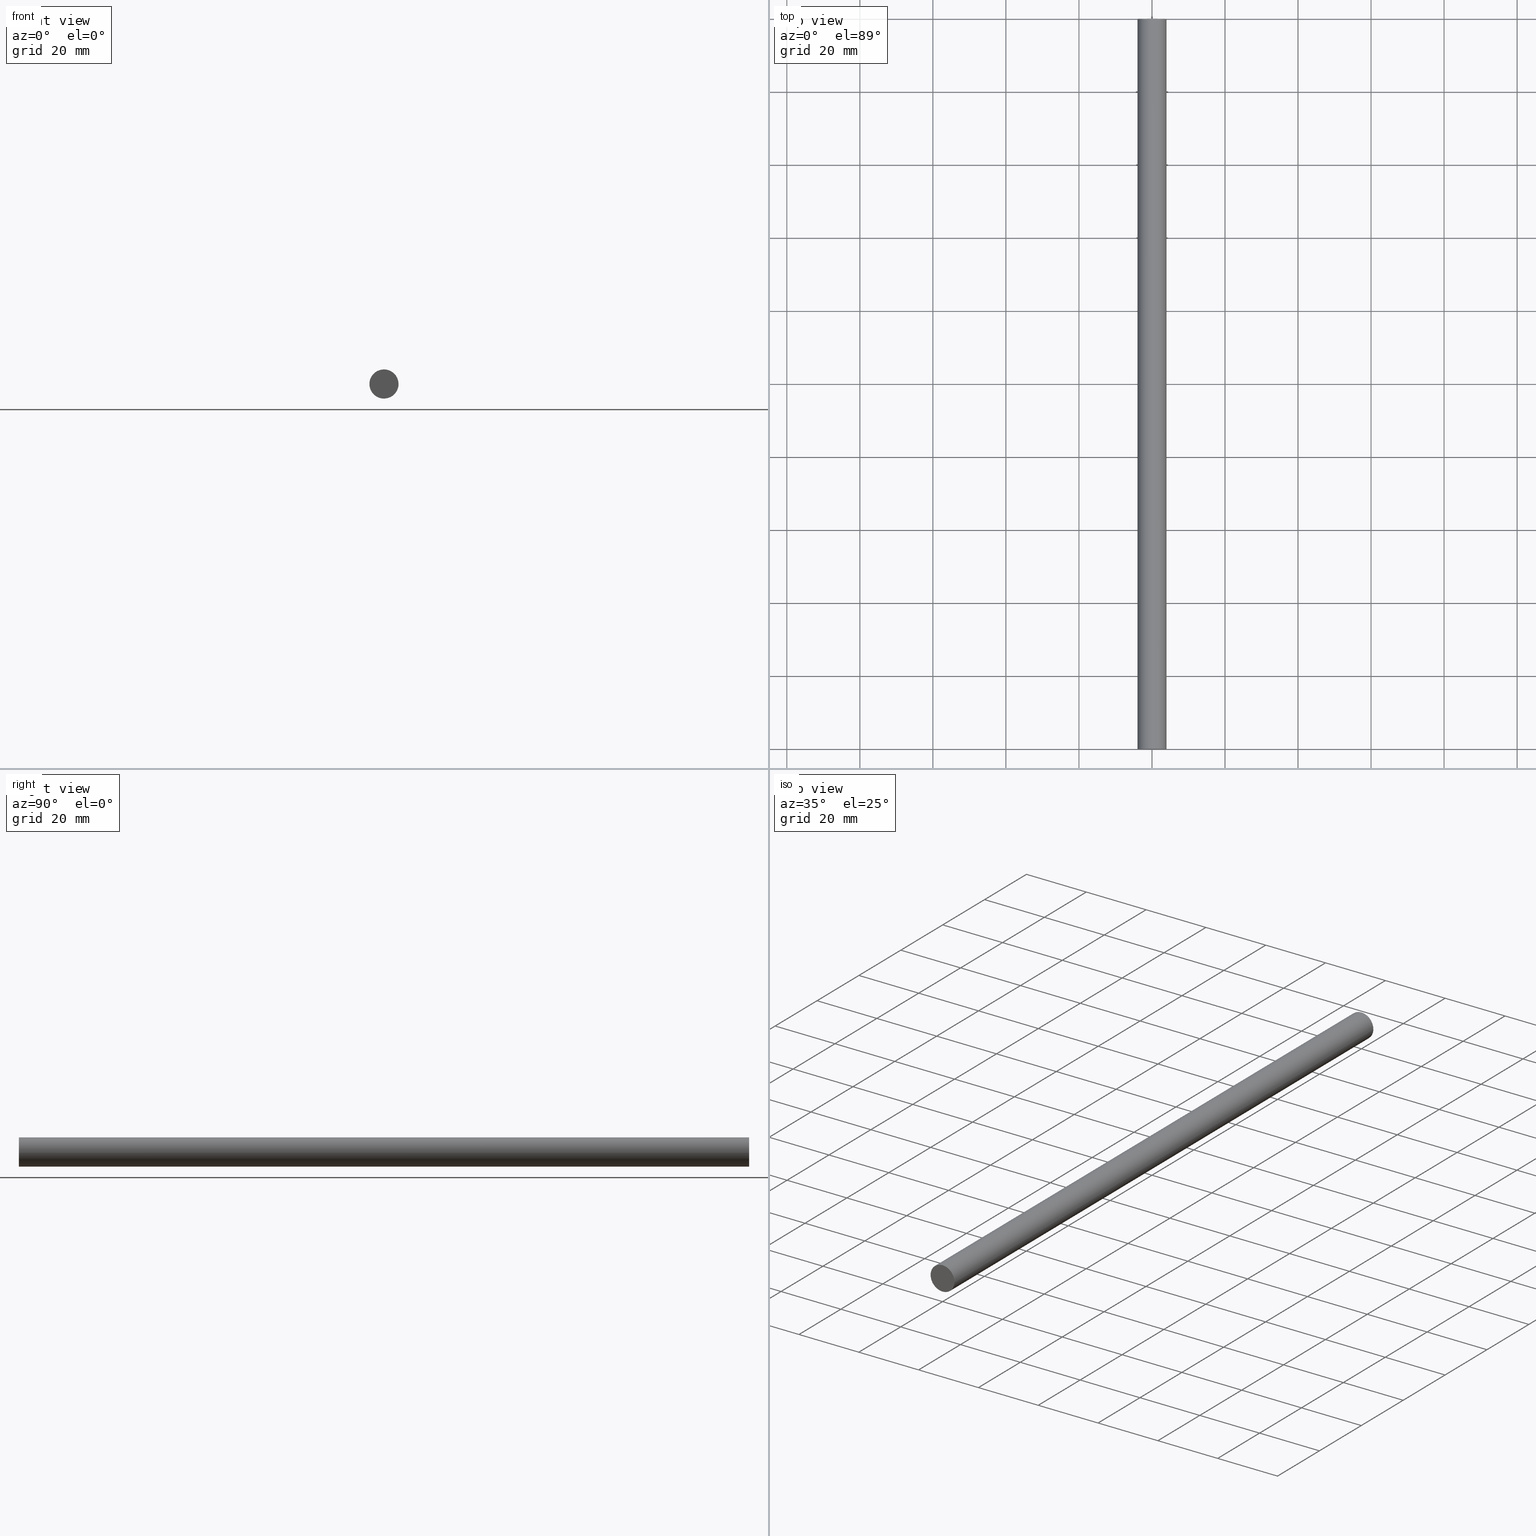
[diagram: canonical four-view strip — front | top / right | iso, engineering-drawing reading convention]
A machine part, canonical four-view strip (front | top / right | iso — engineering-drawing reading convention). The complete STEP part file that produces these views, byte-faithful:
ISO-10303-21;
HEADER;
/****************************************************************
 * Generated by software with PDE/Lib inside                    *
 * PDElib Version 4.4.1-0003, patched  Thursday August 19 11:58 *
 * International Technegroup Inc. (www.iti-oh.com)              *
 ****************************************************************/
FILE_DESCRIPTION((''),'2;1');
FILE_NAME('','2005-12-15T10:01:07',(''),(''),'','CADfix','');
FILE_SCHEMA(('AUTOMOTIVE_DESIGN'));
ENDSEC;
DATA;
#5=APPLICATION_CONTEXT('automotive design');
#6=APPLICATION_PROTOCOL_DEFINITION('Draft International Standard','automotive_design',1998,#5);
#7=PRODUCT_CONTEXT('None',#5,'mechanical');
#8=PRODUCT('rubber foam','','None',(#7));
#9=PRODUCT_RELATED_PRODUCT_CATEGORY('part','description',(#8));
#10=PRODUCT_DEFINITION_FORMATION('None','None',#8);
#11=PRODUCT_DEFINITION_CONTEXT('part definition',#5,'design');
#12=PRODUCT_DEFINITION('None','None',#10,#11);
#18=(NAMED_UNIT(*)PLANE_ANGLE_UNIT()SI_UNIT($,.RADIAN.));
#19=DIMENSIONAL_EXPONENTS(0.0,0.0,0.0,0.0,0.0,0.0,0.0);
#20=PLANE_ANGLE_MEASURE_WITH_UNIT(PLANE_ANGLE_MEASURE(0.017453292500000),#18);
#24=(CONVERSION_BASED_UNIT('DEGREE',#20)NAMED_UNIT(#19)PLANE_ANGLE_UNIT());
#28=(NAMED_UNIT(*)SI_UNIT($,.STERADIAN.)SOLID_ANGLE_UNIT());
#32=(LENGTH_UNIT()NAMED_UNIT(*)SI_UNIT(.MILLI.,.METRE.));
#34=UNCERTAINTY_MEASURE_WITH_UNIT(LENGTH_MEASURE(0.001000000000000),#32,'DISTANCE_ACCURACY_VALUE','');
#36=(GEOMETRIC_REPRESENTATION_CONTEXT(3)GLOBAL_UNCERTAINTY_ASSIGNED_CONTEXT((#34))GLOBAL_UNIT_ASSIGNED_CONTEXT((#24,#28,#32))REPRESENTATION_CONTEXT('None','None'));
#37=AXIS2_PLACEMENT_3D('',#38,#39,#40);
#38=CARTESIAN_POINT('',(0.0,0.0,0.0));
#39=DIRECTION('',(0.0,0.0,1.0));
#40=DIRECTION('',(1.0,0.0,0.0));
#41=ADVANCED_BREP_SHAPE_REPRESENTATION('',(#37,#255),#36);
#42=PRODUCT_DEFINITION_SHAPE('','',#12);
#43=SHAPE_DEFINITION_REPRESENTATION(#42,#41);
#44=CARTESIAN_POINT('',(-3.972038105454666,205.000000000000030,0.472136938627034));
#45=CARTESIAN_POINT('',(-3.985550461794422,205.0,0.358458914551911));
#46=CARTESIAN_POINT('',(-3.992539193687467,205.0,0.244194158139428));
#47=CARTESIAN_POINT('',(-4.236733351826894,205.000000000000090,-3.748345035548039));
#48=CARTESIAN_POINT('',(-0.244194158139428,205.0,-3.992539193687467));
#49=CARTESIAN_POINT('',(3.748345035548039,205.000000000000090,-4.236733351826894));
#50=CARTESIAN_POINT('',(3.992539193687467,205.0,-0.244194158139428));
#51=CARTESIAN_POINT('',(-3.972038105454666,-5.125000000000001,0.472136938627034));
#52=CARTESIAN_POINT('',(-3.985550461794422,-5.125000000000000,0.358458914551911));
#53=CARTESIAN_POINT('',(-3.992539193687467,-5.125000000000000,0.244194158139428));
#54=CARTESIAN_POINT('',(-4.236733351826894,-5.125000000000001,-3.748345035548039));
#55=CARTESIAN_POINT('',(-0.244194158139428,-5.125000000000000,-3.992539193687467));
#56=CARTESIAN_POINT('',(3.748345035548039,-5.125000000000001,-4.236733351826894));
#57=CARTESIAN_POINT('',(3.992539193687467,-5.125000000000000,-0.244194158139428));
#65=(BOUNDED_SURFACE()B_SPLINE_SURFACE(2,1,((#44,#51),(#45,#52),(#46,#53),(#47,#54),(#48,#55),(#49,#56),(#50,#57)),.UNSPECIFIED.,.F.,.F.,.U.)B_SPLINE_SURFACE_WITH_KNOTS((3,2,2,3),(2,2),(0.0,0.265096679918781,6.892513677888299,13.519930675857820),(0.0,210.125000000000110),.UNSPECIFIED.)GEOMETRIC_REPRESENTATION_ITEM()RATIONAL_B_SPLINE_SURFACE(((0.977505800795127,0.977505800795127),(0.988284271247462,0.988284271247462),(1.0,1.0),(0.707106781186548,0.707106781186548),(1.0,1.0),(0.707106781186548,0.707106781186548),(1.0,1.0)))REPRESENTATION_ITEM('')SURFACE());
#66=CARTESIAN_POINT('',(-3.972038105347375,-9.086170E-015,0.472136939529659));
#67=VERTEX_POINT('',#66);
#68=CARTESIAN_POINT('',(0.0,0.0,-4.0));
#69=VERTEX_POINT('',#68);
#70=CARTESIAN_POINT('',(-3.972038105347374,-9.086170E-015,0.472136939529658));
#71=CARTESIAN_POINT('',(-4.0,0.0,0.236896479519807));
#72=CARTESIAN_POINT('',(-4.0,0.0,0.0));
#73=CARTESIAN_POINT('',(-4.000000000000000,0.0,-4.000000000000000));
#74=CARTESIAN_POINT('',(0.0,0.0,-4.0));
#82=(BOUNDED_CURVE()B_SPLINE_CURVE(2,(#70,#71,#72,#73,#74),.UNSPECIFIED.,.F.,.U.)B_SPLINE_CURVE_WITH_KNOTS((3,2,3),(0.229562473438834,0.250000000000000,0.500000000000000),.UNSPECIFIED.)CURVE()GEOMETRIC_REPRESENTATION_ITEM()RATIONAL_B_SPLINE_CURVE((0.956026754037335,0.976055948243659,1.0,0.707106781186548,1.0))REPRESENTATION_ITEM(''));
#83=EDGE_CURVE('',#67,#69,#82,.T.);
#84=ORIENTED_EDGE('',*,*,#83,.F.);
#85=CARTESIAN_POINT('',(-3.972038105347375,200.0,0.472136939529659));
#86=VERTEX_POINT('',#85);
#87=CARTESIAN_POINT('',(-3.972038105347375,200.0,0.472136939529659));
#88=CARTESIAN_POINT('',(-3.972038105347375,-9.086170E-015,0.472136939529659));
#89=QUASI_UNIFORM_CURVE('',1,(#87,#88),.UNSPECIFIED.,.F.,.U.);
#90=EDGE_CURVE('',#86,#67,#89,.T.);
#91=ORIENTED_EDGE('',*,*,#90,.F.);
#92=CARTESIAN_POINT('',(0.0,200.0,-4.0));
#93=VERTEX_POINT('',#92);
#94=CARTESIAN_POINT('',(-3.972038105347375,200.0,0.472136939529659));
#95=CARTESIAN_POINT('',(-4.000000000000000,199.999999999999970,0.236896479519808));
#96=CARTESIAN_POINT('',(-4.0,200.0,0.0));
#97=CARTESIAN_POINT('',(-4.000000000000000,200.0,-4.000000000000000));
#98=CARTESIAN_POINT('',(0.0,200.0,-4.0));
#106=(BOUNDED_CURVE()B_SPLINE_CURVE(2,(#94,#95,#96,#97,#98),.UNSPECIFIED.,.F.,.U.)B_SPLINE_CURVE_WITH_KNOTS((3,2,3),(0.229562473438834,0.250000000000000,0.500000000000000),.UNSPECIFIED.)CURVE()GEOMETRIC_REPRESENTATION_ITEM()RATIONAL_B_SPLINE_CURVE((0.956026754037335,0.976055948243659,1.0,0.707106781186548,1.0))REPRESENTATION_ITEM(''));
#107=EDGE_CURVE('',#86,#93,#106,.T.);
#108=ORIENTED_EDGE('',*,*,#107,.T.);
#109=CARTESIAN_POINT('',(3.992539193624401,200.0,-0.244194159170560));
#110=VERTEX_POINT('',#109);
#111=CARTESIAN_POINT('',(0.0,200.0,-4.0));
#112=CARTESIAN_POINT('',(3.762824265675538,199.999999999999940,-4.0));
#113=CARTESIAN_POINT('',(3.992539193624401,200.000000000000030,-0.244194159170560));
#121=(BOUNDED_CURVE()B_SPLINE_CURVE(2,(#111,#112,#113),.UNSPECIFIED.,.F.,.U.)B_SPLINE_CURVE_WITH_KNOTS((3,3),(0.500000000000000,0.739332962152843),.UNSPECIFIED.)CURVE()GEOMETRIC_REPRESENTATION_ITEM()RATIONAL_B_SPLINE_CURVE((1.0,0.719603993387583,0.976072041482189))REPRESENTATION_ITEM(''));
#122=EDGE_CURVE('',#93,#110,#121,.T.);
#123=ORIENTED_EDGE('',*,*,#122,.T.);
#124=CARTESIAN_POINT('',(3.992539193624401,-9.325873E-015,-0.244194159170560));
#125=VERTEX_POINT('',#124);
#126=CARTESIAN_POINT('',(3.992539193624401,200.0,-0.244194159170560));
#127=CARTESIAN_POINT('',(3.992539193624401,-9.325873E-015,-0.244194159170560));
#128=QUASI_UNIFORM_CURVE('',1,(#126,#127),.UNSPECIFIED.,.F.,.U.);
#129=EDGE_CURVE('',#110,#125,#128,.T.);
#130=ORIENTED_EDGE('',*,*,#129,.T.);
#131=CARTESIAN_POINT('',(0.0,0.0,-4.0));
#132=CARTESIAN_POINT('',(3.762824265675538,0.0,-4.0));
#133=CARTESIAN_POINT('',(3.992539193624401,-9.325873E-015,-0.244194159170560));
#141=(BOUNDED_CURVE()B_SPLINE_CURVE(2,(#131,#132,#133),.UNSPECIFIED.,.F.,.U.)B_SPLINE_CURVE_WITH_KNOTS((3,3),(0.500000000000000,0.739332962152843),.UNSPECIFIED.)CURVE()GEOMETRIC_REPRESENTATION_ITEM()RATIONAL_B_SPLINE_CURVE((1.0,0.719603993387583,0.976072041482189))REPRESENTATION_ITEM(''));
#142=EDGE_CURVE('',#69,#125,#141,.T.);
#143=ORIENTED_EDGE('',*,*,#142,.F.);
#144=EDGE_LOOP('',(#84,#91,#108,#123,#130,#143));
#145=FACE_OUTER_BOUND('',#144,.T.);
#146=ADVANCED_FACE('',(#145),#65,.T.);
#147=CARTESIAN_POINT('',(3.992539193687467,205.0,-0.244194158139428));
#148=CARTESIAN_POINT('',(4.236733351826894,205.000000000000090,3.748345035548039));
#149=CARTESIAN_POINT('',(0.244194158139428,205.0,3.992539193687467));
#150=CARTESIAN_POINT('',(-3.526173963358004,205.000000000000060,4.223144786930110));
#151=CARTESIAN_POINT('',(-3.972038105454666,205.000000000000030,0.472136938627034));
#152=CARTESIAN_POINT('',(3.992539193687467,-5.125000000000000,-0.244194158139428));
#153=CARTESIAN_POINT('',(4.236733351826894,-5.125000000000001,3.748345035548039));
#154=CARTESIAN_POINT('',(0.244194158139428,-5.125000000000000,3.992539193687467));
#155=CARTESIAN_POINT('',(-3.526173963358004,-5.124999999999999,4.223144786930110));
#156=CARTESIAN_POINT('',(-3.972038105454666,-5.125000000000001,0.472136938627034));
#164=(BOUNDED_SURFACE()B_SPLINE_SURFACE(2,1,((#147,#152),(#148,#153),(#149,#154),(#150,#155),(#151,#156)),.UNSPECIFIED.,.F.,.F.,.U.)B_SPLINE_SURFACE_WITH_KNOTS((3,2,3),(2,2),(0.0,6.627416997969518,12.989737316020260),(0.0,210.125000000000110),.UNSPECIFIED.)GEOMETRIC_REPRESENTATION_ITEM()RATIONAL_B_SPLINE_SURFACE(((1.0,1.0),(0.707106781186548,0.707106781186548),(1.0,1.0),(0.718822509939086,0.718822509939086),(0.977505800795127,0.977505800795127)))REPRESENTATION_ITEM('')SURFACE());
#165=CARTESIAN_POINT('',(0.0,0.0,4.0));
#166=VERTEX_POINT('',#165);
#167=CARTESIAN_POINT('',(0.0,0.0,4.0));
#168=CARTESIAN_POINT('',(-3.552698102179440,0.0,4.000000000000000));
#169=CARTESIAN_POINT('',(-3.972038105347374,-9.086170E-015,0.472136939529658));
#177=(BOUNDED_CURVE()B_SPLINE_CURVE(2,(#167,#168,#169),.UNSPECIFIED.,.F.,.U.)B_SPLINE_CURVE_WITH_KNOTS((3,3),(0.0,0.229562473438834),.UNSPECIFIED.)CURVE()GEOMETRIC_REPRESENTATION_ITEM()RATIONAL_B_SPLINE_CURVE((1.0,0.731050832942889,0.956026754037335))REPRESENTATION_ITEM(''));
#178=EDGE_CURVE('',#166,#67,#177,.T.);
#179=ORIENTED_EDGE('',*,*,#178,.F.);
#180=CARTESIAN_POINT('',(3.992539193624401,-9.325873E-015,-0.244194159170560));
#181=CARTESIAN_POINT('',(4.000000000000000,0.0,-0.122211054228378));
#182=CARTESIAN_POINT('',(4.0,0.0,0.0));
#183=CARTESIAN_POINT('',(4.000000000000000,0.0,4.000000000000000));
#184=CARTESIAN_POINT('',(0.0,0.0,4.0));
#192=(BOUNDED_CURVE()B_SPLINE_CURVE(2,(#180,#181,#182,#183,#184),.UNSPECIFIED.,.F.,.U.)B_SPLINE_CURVE_WITH_KNOTS((3,2,3),(0.739332962152843,0.750000000000000,1.0),.UNSPECIFIED.)CURVE()GEOMETRIC_REPRESENTATION_ITEM()RATIONAL_B_SPLINE_CURVE((0.976072041482189,0.987502787798965,1.0,0.707106781186548,1.0))REPRESENTATION_ITEM(''));
#193=EDGE_CURVE('',#125,#166,#192,.T.);
#194=ORIENTED_EDGE('',*,*,#193,.F.);
#195=ORIENTED_EDGE('',*,*,#129,.F.);
#196=CARTESIAN_POINT('',(0.0,200.0,4.0));
#197=VERTEX_POINT('',#196);
#198=CARTESIAN_POINT('',(3.992539193624401,200.000000000000030,-0.244194159170560));
#199=CARTESIAN_POINT('',(4.000000000000000,200.000000000000060,-0.122211054228378));
#200=CARTESIAN_POINT('',(4.0,200.0,0.0));
#201=CARTESIAN_POINT('',(4.000000000000000,200.0,4.000000000000000));
#202=CARTESIAN_POINT('',(0.0,200.0,4.0));
#210=(BOUNDED_CURVE()B_SPLINE_CURVE(2,(#198,#199,#200,#201,#202),.UNSPECIFIED.,.F.,.U.)B_SPLINE_CURVE_WITH_KNOTS((3,2,3),(0.739332962152843,0.750000000000000,1.0),.UNSPECIFIED.)CURVE()GEOMETRIC_REPRESENTATION_ITEM()RATIONAL_B_SPLINE_CURVE((0.976072041482189,0.987502787798965,1.0,0.707106781186548,1.0))REPRESENTATION_ITEM(''));
#211=EDGE_CURVE('',#110,#197,#210,.T.);
#212=ORIENTED_EDGE('',*,*,#211,.T.);
#213=CARTESIAN_POINT('',(0.0,200.0,4.0));
#214=CARTESIAN_POINT('',(-3.552698102179440,200.000000000000060,4.000000000000000));
#215=CARTESIAN_POINT('',(-3.972038105347374,200.0,0.472136939529659));
#223=(BOUNDED_CURVE()B_SPLINE_CURVE(2,(#213,#214,#215),.UNSPECIFIED.,.F.,.U.)B_SPLINE_CURVE_WITH_KNOTS((3,3),(0.0,0.229562473438834),.UNSPECIFIED.)CURVE()GEOMETRIC_REPRESENTATION_ITEM()RATIONAL_B_SPLINE_CURVE((1.0,0.731050832942889,0.956026754037335))REPRESENTATION_ITEM(''));
#224=EDGE_CURVE('',#197,#86,#223,.T.);
#225=ORIENTED_EDGE('',*,*,#224,.T.);
#226=ORIENTED_EDGE('',*,*,#90,.T.);
#227=EDGE_LOOP('',(#179,#194,#195,#212,#225,#226));
#228=FACE_OUTER_BOUND('',#227,.T.);
#229=ADVANCED_FACE('',(#228),#164,.T.);
#230=CARTESIAN_POINT('',(-4.399527458140596,0.0,4.399599984494448));
#231=CARTESIAN_POINT('',(4.399502638766510,0.0,4.399599984494448));
#232=CARTESIAN_POINT('',(-4.399527458140596,0.0,-4.399600199071169));
#233=CARTESIAN_POINT('',(4.399502638766510,0.0,-4.399600199071169));
#234=B_SPLINE_SURFACE_WITH_KNOTS('',1,1,((#230,#232),(#231,#233)),.UNSPECIFIED.,.F.,.F.,.U.,(2,2),(2,2),(0.0,8.799030096907107),(0.0,8.799200183565617),.UNSPECIFIED.);
#235=ORIENTED_EDGE('',*,*,#178,.T.);
#236=ORIENTED_EDGE('',*,*,#83,.T.);
#237=ORIENTED_EDGE('',*,*,#142,.T.);
#238=ORIENTED_EDGE('',*,*,#193,.T.);
#239=EDGE_LOOP('',(#235,#236,#237,#238));
#240=FACE_OUTER_BOUND('',#239,.T.);
#241=ADVANCED_FACE('',(#240),#234,.F.);
#242=CARTESIAN_POINT('',(-4.399527458140596,200.0,4.399599984494448));
#243=CARTESIAN_POINT('',(4.399502638766510,200.0,4.399599984494448));
#244=CARTESIAN_POINT('',(-4.399527458140596,200.0,-4.399600199071169));
#245=CARTESIAN_POINT('',(4.399502638766510,200.0,-4.399600199071169));
#246=B_SPLINE_SURFACE_WITH_KNOTS('',1,1,((#242,#244),(#243,#245)),.UNSPECIFIED.,.F.,.F.,.U.,(2,2),(2,2),(0.0,8.799030096907107),(0.0,8.799200183565617),.UNSPECIFIED.);
#247=ORIENTED_EDGE('',*,*,#211,.F.);
#248=ORIENTED_EDGE('',*,*,#122,.F.);
#249=ORIENTED_EDGE('',*,*,#107,.F.);
#250=ORIENTED_EDGE('',*,*,#224,.F.);
#251=EDGE_LOOP('',(#247,#248,#249,#250));
#252=FACE_OUTER_BOUND('',#251,.T.);
#253=ADVANCED_FACE('',(#252),#246,.T.);
#254=CLOSED_SHELL('',(#146,#229,#241,#253));
#255=MANIFOLD_SOLID_BREP('rubber foam',#254);
#261=(NAMED_UNIT(*)PLANE_ANGLE_UNIT()SI_UNIT($,.RADIAN.));
#262=DIMENSIONAL_EXPONENTS(0.0,0.0,0.0,0.0,0.0,0.0,0.0);
#263=PLANE_ANGLE_MEASURE_WITH_UNIT(PLANE_ANGLE_MEASURE(0.017453292500000),#261);
#267=(CONVERSION_BASED_UNIT('DEGREE',#263)NAMED_UNIT(#262)PLANE_ANGLE_UNIT());
#271=(NAMED_UNIT(*)SI_UNIT($,.STERADIAN.)SOLID_ANGLE_UNIT());
#275=(LENGTH_UNIT()NAMED_UNIT(*)SI_UNIT(.MILLI.,.METRE.));
#277=UNCERTAINTY_MEASURE_WITH_UNIT(LENGTH_MEASURE(0.001000000000000),#275,'DISTANCE_ACCURACY_VALUE','');
#279=(GEOMETRIC_REPRESENTATION_CONTEXT(3)GLOBAL_UNCERTAINTY_ASSIGNED_CONTEXT((#277))GLOBAL_UNIT_ASSIGNED_CONTEXT((#267,#271,#275))REPRESENTATION_CONTEXT('','3D'));
ENDSEC;
END-ISO-10303-21;
